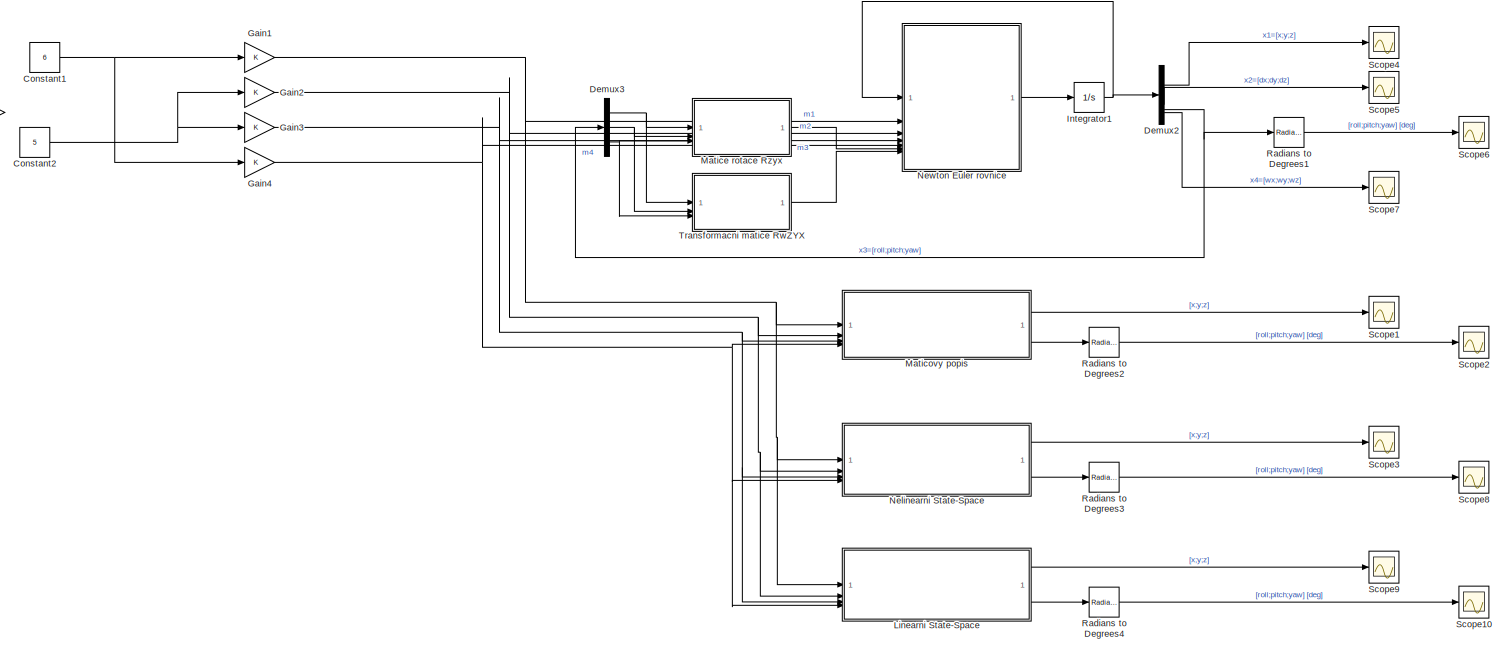
[diagram: root canvas - part 1/2, most of the canvas]
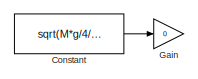
[diagram: root canvas - part 2/2, top left region]
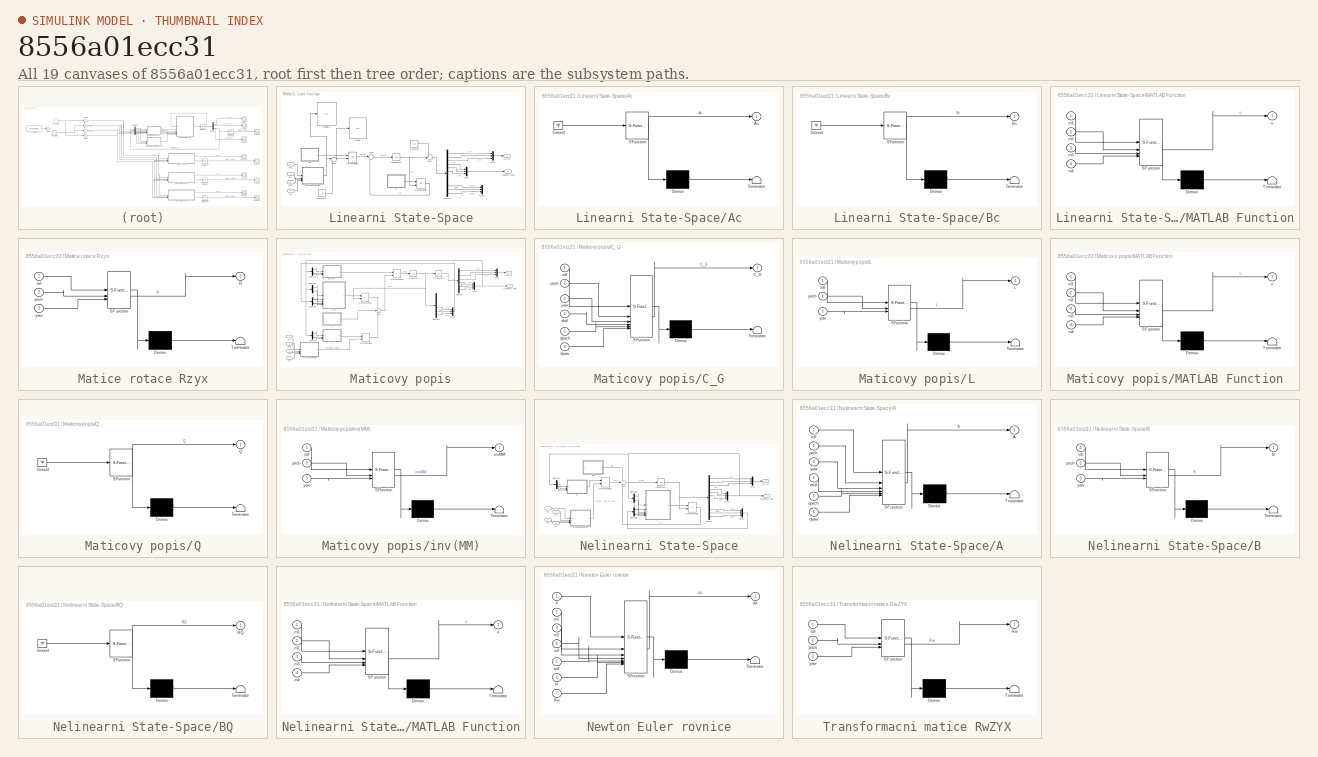
[diagram: thumbnail index - all 19 canvases of the model, root first then tree order]
MODEL slx_8556a01ecc31
KIND model
CONFIG AbsTol = auto
CONFIG EnableMultiTasking = off
CONFIG FixedStep = 0.01
CONFIG MaxStep = auto
CONFIG MinStep = auto
CONFIG RelTol = 1e-3
CONFIG SampleTimeConstraint = Unconstrained
CONFIG SolverName = FixedStepAuto
CONFIG StartTime = 0.0
CONFIG StopTime = 1
BLOCK [Constant] Constant
  Value = sqrt(M*g/4/k_thrust)
BLOCK [Constant] Constant1
  Value = 6
BLOCK [Constant] Constant2
  Value = 5
BLOCK [Demux] Demux2
BLOCK [Demux] Demux3
  Outputs = 3
BLOCK [Gain] Gain
  Gain = 0
BLOCK [Gain] Gain1
BLOCK [Gain] Gain2
BLOCK [Gain] Gain3
BLOCK [Gain] Gain4
BLOCK [Integrator] Integrator1
  InitialCondition = Xinit
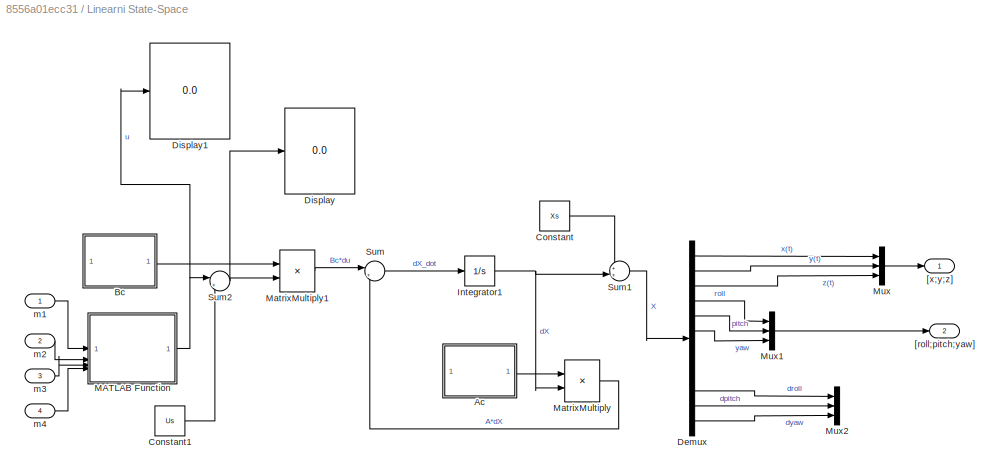
BLOCK [SubSystem] Linearni State-Space
BLOCK [SubSystem] Linearni State-Space/Ac
  ErrorFcn = Stateflow.Translate.translate
  PermitHierarchicalResolution = ExplicitOnly
  SFBlockType = MATLAB Function
  TreatAsAtomicUnit = on
BLOCK [Demux] Linearni State-Space/Ac/ Demux 
  Outputs = 1
BLOCK [Ground] Linearni State-Space/Ac/ Ground 
BLOCK [S-Function] Linearni State-Space/Ac/ SFunction 
  EnableBusSupport = on
  FunctionName = sf_sfun
  Parameters = M,g,k
  PortCounts = [1 2]
  SFcnIsStateOwnerBlock = off
  SFunctionDeploymentMode = off
  Tag = Stateflow S-Function 17
BLOCK [Terminator] Linearni State-Space/Ac/ Terminator 
BLOCK [Outport] Linearni State-Space/Ac/Ac
BLOCK [SubSystem] Linearni State-Space/Bc
  ErrorFcn = Stateflow.Translate.translate
  PermitHierarchicalResolution = ExplicitOnly
  SFBlockType = MATLAB Function
  TreatAsAtomicUnit = on
BLOCK [Demux] Linearni State-Space/Bc/ Demux 
  Outputs = 1
BLOCK [Ground] Linearni State-Space/Bc/ Ground 
BLOCK [S-Function] Linearni State-Space/Bc/ SFunction 
  EnableBusSupport = on
  FunctionName = sf_sfun
  Parameters = Ixx,Iyy,Izz,M
  PortCounts = [1 2]
  SFcnIsStateOwnerBlock = off
  SFunctionDeploymentMode = off
  Tag = Stateflow S-Function 12
BLOCK [Terminator] Linearni State-Space/Bc/ Terminator 
BLOCK [Outport] Linearni State-Space/Bc/Bc
BLOCK [Constant] Linearni State-Space/Constant
  Value = Xs
BLOCK [Constant] Linearni State-Space/Constant1
  Value = Us
BLOCK [Demux] Linearni State-Space/Demux
  Outputs = 12
BLOCK [Display] Linearni State-Space/Display
  Decimation = 1
BLOCK [Display] Linearni State-Space/Display1
  Decimation = 1
BLOCK [Integrator] Linearni State-Space/Integrator1
  InitialCondition = Xinit_ss
BLOCK [SubSystem] Linearni State-Space/MATLAB Function
  ErrorFcn = Stateflow.Translate.translate
  PermitHierarchicalResolution = ExplicitOnly
  SFBlockType = MATLAB Function
  TreatAsAtomicUnit = on
BLOCK [Demux] Linearni State-Space/MATLAB Function/ Demux 
  Outputs = 1
BLOCK [S-Function] Linearni State-Space/MATLAB Function/ SFunction 
  EnableBusSupport = on
  FunctionName = sf_sfun
  Parameters = L,b_moment,k_thrust
  PortCounts = [4 2]
  SFcnIsStateOwnerBlock = off
  SFunctionDeploymentMode = off
  Tag = Stateflow S-Function 16
BLOCK [Terminator] Linearni State-Space/MATLAB Function/ Terminator 
BLOCK [Inport] Linearni State-Space/MATLAB Function/m1
BLOCK [Inport] Linearni State-Space/MATLAB Function/m2
  Port = 2
BLOCK [Inport] Linearni State-Space/MATLAB Function/m3
  Port = 3
BLOCK [Inport] Linearni State-Space/MATLAB Function/m4
  Port = 4
BLOCK [Outport] Linearni State-Space/MATLAB Function/u
BLOCK [Product] Linearni State-Space/MatrixMultiply
  Multiplication = Matrix(*)
BLOCK [Product] Linearni State-Space/MatrixMultiply1
  Multiplication = Matrix(*)
BLOCK [Mux] Linearni State-Space/Mux
  DisplayOption = bar
  Inputs = 3
BLOCK [Mux] Linearni State-Space/Mux1
  DisplayOption = bar
  Inputs = 3
BLOCK [Mux] Linearni State-Space/Mux2
  DisplayOption = bar
  Inputs = 3
BLOCK [Sum] Linearni State-Space/Sum
  Inputs = |++
BLOCK [Sum] Linearni State-Space/Sum1
  Inputs = ++|
BLOCK [Sum] Linearni State-Space/Sum2
  Inputs = |+-
BLOCK [Outport] Linearni State-Space/[roll;pitch;yaw]
  Port = 2
BLOCK [Outport] Linearni State-Space/[x;y;z]
BLOCK [Inport] Linearni State-Space/m1
BLOCK [Inport] Linearni State-Space/m2
  Port = 2
BLOCK [Inport] Linearni State-Space/m3
  Port = 3
BLOCK [Inport] Linearni State-Space/m4
  Port = 4
BLOCK [SubSystem] Matice rotace Rzyx
  ErrorFcn = Stateflow.Translate.translate
  PermitHierarchicalResolution = ExplicitOnly
  SFBlockType = MATLAB Function
  TreatAsAtomicUnit = on
BLOCK [Demux] Matice rotace Rzyx/ Demux 
  Outputs = 1
BLOCK [S-Function] Matice rotace Rzyx/ SFunction 
  EnableBusSupport = on
  FunctionName = sf_sfun
  PortCounts = [3 2]
  SFcnIsStateOwnerBlock = off
  SFunctionDeploymentMode = off
  Tag = Stateflow S-Function 4
BLOCK [Terminator] Matice rotace Rzyx/ Terminator 
BLOCK [Outport] Matice rotace Rzyx/R
BLOCK [Inport] Matice rotace Rzyx/pitch
  Port = 2
BLOCK [Inport] Matice rotace Rzyx/roll
BLOCK [Inport] Matice rotace Rzyx/yaw
  Port = 3
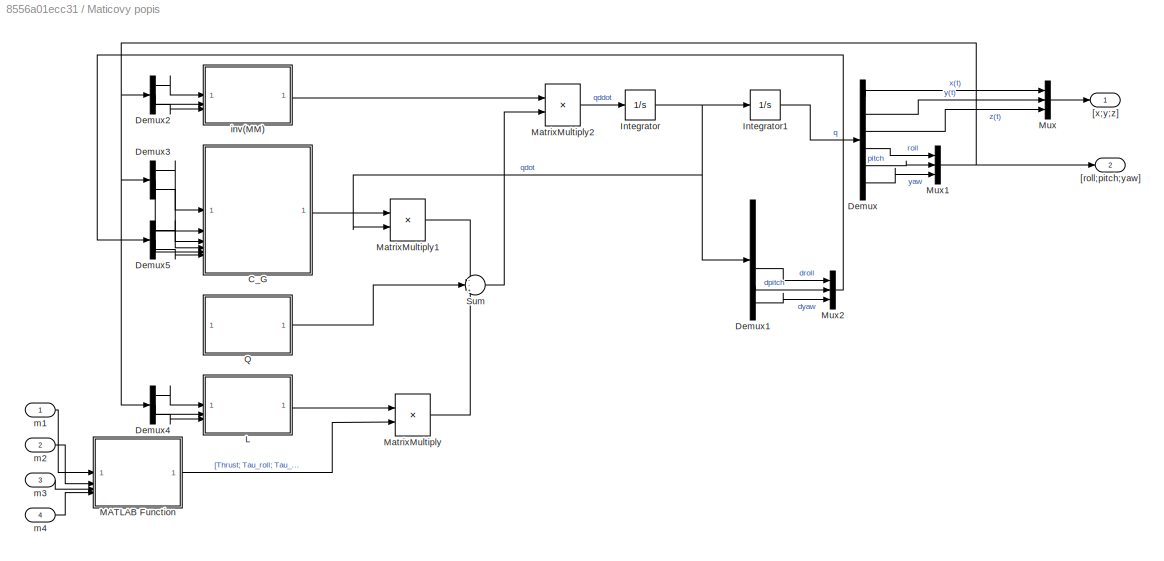
BLOCK [SubSystem] Maticovy popis
BLOCK [SubSystem] Maticovy popis/C_G
  ErrorFcn = Stateflow.Translate.translate
  PermitHierarchicalResolution = ExplicitOnly
  SFBlockType = MATLAB Function
  TreatAsAtomicUnit = on
BLOCK [Demux] Maticovy popis/C_G/ Demux 
  Outputs = 1
BLOCK [S-Function] Maticovy popis/C_G/ SFunction 
  EnableBusSupport = on
  FunctionName = sf_sfun
  Parameters = Ixx,Iyy,Izz,k
  PortCounts = [6 2]
  SFcnIsStateOwnerBlock = off
  SFunctionDeploymentMode = off
  Tag = Stateflow S-Function 1
BLOCK [Terminator] Maticovy popis/C_G/ Terminator 
BLOCK [Outport] Maticovy popis/C_G/C_G
BLOCK [Inport] Maticovy popis/C_G/dpitch
  Port = 5
BLOCK [Inport] Maticovy popis/C_G/droll
  Port = 4
BLOCK [Inport] Maticovy popis/C_G/dyaw
  Port = 6
BLOCK [Inport] Maticovy popis/C_G/pitch
  Port = 2
BLOCK [Inport] Maticovy popis/C_G/roll
BLOCK [Inport] Maticovy popis/C_G/yaw
  Port = 3
BLOCK [Demux] Maticovy popis/Demux
  Outputs = 6
BLOCK [Demux] Maticovy popis/Demux1
  Outputs = 6
BLOCK [Demux] Maticovy popis/Demux2
  Outputs = 3
BLOCK [Demux] Maticovy popis/Demux3
  Outputs = 3
BLOCK [Demux] Maticovy popis/Demux4
  Outputs = 3
BLOCK [Demux] Maticovy popis/Demux5
  Outputs = 3
BLOCK [Integrator] Maticovy popis/Integrator
  InitialCondition = [0;0;0;0;0;0]
BLOCK [Integrator] Maticovy popis/Integrator1
  InitialCondition = Xinit_matrix
BLOCK [SubSystem] Maticovy popis/L
  ErrorFcn = Stateflow.Translate.translate
  PermitHierarchicalResolution = ExplicitOnly
  SFBlockType = MATLAB Function
  TreatAsAtomicUnit = on
BLOCK [Demux] Maticovy popis/L/ Demux 
  Outputs = 1
BLOCK [S-Function] Maticovy popis/L/ SFunction 
  EnableBusSupport = on
  FunctionName = sf_sfun
  PortCounts = [3 2]
  SFcnIsStateOwnerBlock = off
  SFunctionDeploymentMode = off
  Tag = Stateflow S-Function 7
BLOCK [Terminator] Maticovy popis/L/ Terminator 
BLOCK [Outport] Maticovy popis/L/L
BLOCK [Inport] Maticovy popis/L/pitch
  Port = 2
BLOCK [Inport] Maticovy popis/L/roll
BLOCK [Inport] Maticovy popis/L/yaw
  Port = 3
BLOCK [SubSystem] Maticovy popis/MATLAB Function
  ErrorFcn = Stateflow.Translate.translate
  PermitHierarchicalResolution = ExplicitOnly
  SFBlockType = MATLAB Function
  TreatAsAtomicUnit = on
BLOCK [Demux] Maticovy popis/MATLAB Function/ Demux 
  Outputs = 1
BLOCK [S-Function] Maticovy popis/MATLAB Function/ SFunction 
  EnableBusSupport = on
  FunctionName = sf_sfun
  Parameters = L,b_moment,k_thrust
  PortCounts = [4 2]
  SFcnIsStateOwnerBlock = off
  SFunctionDeploymentMode = off
  Tag = Stateflow S-Function 8
BLOCK [Terminator] Maticovy popis/MATLAB Function/ Terminator 
BLOCK [Inport] Maticovy popis/MATLAB Function/m1
BLOCK [Inport] Maticovy popis/MATLAB Function/m2
  Port = 2
BLOCK [Inport] Maticovy popis/MATLAB Function/m3
  Port = 3
BLOCK [Inport] Maticovy popis/MATLAB Function/m4
  Port = 4
BLOCK [Outport] Maticovy popis/MATLAB Function/u
BLOCK [Product] Maticovy popis/MatrixMultiply
  Multiplication = Matrix(*)
BLOCK [Product] Maticovy popis/MatrixMultiply1
  Multiplication = Matrix(*)
BLOCK [Product] Maticovy popis/MatrixMultiply2
  Multiplication = Matrix(*)
BLOCK [Mux] Maticovy popis/Mux
  DisplayOption = bar
  Inputs = 3
BLOCK [Mux] Maticovy popis/Mux1
  DisplayOption = bar
  Inputs = 3
BLOCK [Mux] Maticovy popis/Mux2
  DisplayOption = bar
  Inputs = 3
BLOCK [SubSystem] Maticovy popis/Q
  ErrorFcn = Stateflow.Translate.translate
  PermitHierarchicalResolution = ExplicitOnly
  SFBlockType = MATLAB Function
  TreatAsAtomicUnit = on
BLOCK [Demux] Maticovy popis/Q/ Demux 
  Outputs = 1
BLOCK [Ground] Maticovy popis/Q/ Ground 
BLOCK [S-Function] Maticovy popis/Q/ SFunction 
  EnableBusSupport = on
  FunctionName = sf_sfun
  Parameters = M,g
  PortCounts = [1 2]
  SFcnIsStateOwnerBlock = off
  SFunctionDeploymentMode = off
  Tag = Stateflow S-Function 3
BLOCK [Terminator] Maticovy popis/Q/ Terminator 
BLOCK [Outport] Maticovy popis/Q/Q
BLOCK [Sum] Maticovy popis/Sum
  Inputs = --+
BLOCK [Outport] Maticovy popis/[roll;pitch;yaw]
  Port = 2
BLOCK [Outport] Maticovy popis/[x;y;z]
BLOCK [SubSystem] Maticovy popis/inv(MM)
  ErrorFcn = Stateflow.Translate.translate
  PermitHierarchicalResolution = ExplicitOnly
  SFBlockType = MATLAB Function
  TreatAsAtomicUnit = on
BLOCK [Demux] Maticovy popis/inv(MM)/ Demux 
  Outputs = 1
BLOCK [S-Function] Maticovy popis/inv(MM)/ SFunction 
  EnableBusSupport = on
  FunctionName = sf_sfun
  Parameters = Ixx,Iyy,Izz,M
  PortCounts = [3 2]
  SFcnIsStateOwnerBlock = off
  SFunctionDeploymentMode = off
  Tag = Stateflow S-Function 2
BLOCK [Terminator] Maticovy popis/inv(MM)/ Terminator 
BLOCK [Outport] Maticovy popis/inv(MM)/invMM
BLOCK [Inport] Maticovy popis/inv(MM)/pitch
  Port = 2
BLOCK [Inport] Maticovy popis/inv(MM)/roll
BLOCK [Inport] Maticovy popis/inv(MM)/yaw
  Port = 3
BLOCK [Inport] Maticovy popis/m1
BLOCK [Inport] Maticovy popis/m2
  Port = 2
BLOCK [Inport] Maticovy popis/m3
  Port = 3
BLOCK [Inport] Maticovy popis/m4
  Port = 4
BLOCK [SubSystem] Nelinearni State-Space
BLOCK [SubSystem] Nelinearni State-Space/A
  ErrorFcn = Stateflow.Translate.translate
  PermitHierarchicalResolution = ExplicitOnly
  SFBlockType = MATLAB Function
  TreatAsAtomicUnit = on
BLOCK [Demux] Nelinearni State-Space/A/ Demux 
  Outputs = 1
BLOCK [S-Function] Nelinearni State-Space/A/ SFunction 
  EnableBusSupport = on
  FunctionName = sf_sfun
  Parameters = Ixx,Iyy,Izz,M,k
  PortCounts = [6 2]
  SFcnIsStateOwnerBlock = off
  SFunctionDeploymentMode = off
  Tag = Stateflow S-Function 9
BLOCK [Terminator] Nelinearni State-Space/A/ Terminator 
BLOCK [Outport] Nelinearni State-Space/A/A
BLOCK [Inport] Nelinearni State-Space/A/dpitch
  Port = 5
BLOCK [Inport] Nelinearni State-Space/A/droll
  Port = 4
BLOCK [Inport] Nelinearni State-Space/A/dyaw
  Port = 6
BLOCK [Inport] Nelinearni State-Space/A/pitch
  Port = 2
BLOCK [Inport] Nelinearni State-Space/A/roll
BLOCK [Inport] Nelinearni State-Space/A/yaw
  Port = 3
BLOCK [SubSystem] Nelinearni State-Space/B
  ErrorFcn = Stateflow.Translate.translate
  PermitHierarchicalResolution = ExplicitOnly
  SFBlockType = MATLAB Function
  TreatAsAtomicUnit = on
BLOCK [Demux] Nelinearni State-Space/B/ Demux 
  Outputs = 1
BLOCK [S-Function] Nelinearni State-Space/B/ SFunction 
  EnableBusSupport = on
  FunctionName = sf_sfun
  Parameters = Ixx,Iyy,Izz,M
  PortCounts = [3 2]
  SFcnIsStateOwnerBlock = off
  SFunctionDeploymentMode = off
  Tag = Stateflow S-Function 13
BLOCK [Terminator] Nelinearni State-Space/B/ Terminator 
BLOCK [Outport] Nelinearni State-Space/B/B
BLOCK [Inport] Nelinearni State-Space/B/pitch
  Port = 2
BLOCK [Inport] Nelinearni State-Space/B/roll
BLOCK [Inport] Nelinearni State-Space/B/yaw
  Port = 3
BLOCK [SubSystem] Nelinearni State-Space/BQ
  ErrorFcn = Stateflow.Translate.translate
  PermitHierarchicalResolution = ExplicitOnly
  SFBlockType = MATLAB Function
  TreatAsAtomicUnit = on
BLOCK [Demux] Nelinearni State-Space/BQ/ Demux 
  Outputs = 1
BLOCK [Ground] Nelinearni State-Space/BQ/ Ground 
BLOCK [S-Function] Nelinearni State-Space/BQ/ SFunction 
  EnableBusSupport = on
  FunctionName = sf_sfun
  Parameters = g
  PortCounts = [1 2]
  SFcnIsStateOwnerBlock = off
  SFunctionDeploymentMode = off
  Tag = Stateflow S-Function 10
BLOCK [Terminator] Nelinearni State-Space/BQ/ Terminator 
BLOCK [Outport] Nelinearni State-Space/BQ/BQ
BLOCK [Demux] Nelinearni State-Space/Demux
  Outputs = 12
BLOCK [Demux] Nelinearni State-Space/Demux2
  Outputs = 3
BLOCK [Demux] Nelinearni State-Space/Demux3
  Outputs = 3
BLOCK [Demux] Nelinearni State-Space/Demux5
  Outputs = 3
BLOCK [Integrator] Nelinearni State-Space/Integrator1
  InitialCondition = Xinit_ss
BLOCK [SubSystem] Nelinearni State-Space/MATLAB Function
  ErrorFcn = Stateflow.Translate.translate
  PermitHierarchicalResolution = ExplicitOnly
  SFBlockType = MATLAB Function
  TreatAsAtomicUnit = on
BLOCK [Demux] Nelinearni State-Space/MATLAB Function/ Demux 
  Outputs = 1
BLOCK [S-Function] Nelinearni State-Space/MATLAB Function/ SFunction 
  EnableBusSupport = on
  FunctionName = sf_sfun
  Parameters = L,b_moment,k_thrust
  PortCounts = [4 2]
  SFcnIsStateOwnerBlock = off
  SFunctionDeploymentMode = off
  Tag = Stateflow S-Function 11
BLOCK [Terminator] Nelinearni State-Space/MATLAB Function/ Terminator 
BLOCK [Inport] Nelinearni State-Space/MATLAB Function/m1
BLOCK [Inport] Nelinearni State-Space/MATLAB Function/m2
  Port = 2
BLOCK [Inport] Nelinearni State-Space/MATLAB Function/m3
  Port = 3
BLOCK [Inport] Nelinearni State-Space/MATLAB Function/m4
  Port = 4
BLOCK [Outport] Nelinearni State-Space/MATLAB Function/u
BLOCK [Product] Nelinearni State-Space/MatrixMultiply
  Multiplication = Matrix(*)
BLOCK [Product] Nelinearni State-Space/MatrixMultiply1
  Multiplication = Matrix(*)
BLOCK [Mux] Nelinearni State-Space/Mux
  DisplayOption = bar
  Inputs = 3
BLOCK [Mux] Nelinearni State-Space/Mux1
  DisplayOption = bar
  Inputs = 3
BLOCK [Mux] Nelinearni State-Space/Mux2
  DisplayOption = bar
  Inputs = 3
BLOCK [Sum] Nelinearni State-Space/Sum
  Inputs = +++
BLOCK [Outport] Nelinearni State-Space/[roll;pitch;yaw]
  Port = 2
BLOCK [Outport] Nelinearni State-Space/[x;y;z]
BLOCK [Inport] Nelinearni State-Space/m1
BLOCK [Inport] Nelinearni State-Space/m2
  Port = 2
BLOCK [Inport] Nelinearni State-Space/m3
  Port = 3
BLOCK [Inport] Nelinearni State-Space/m4
  Port = 4
BLOCK [SubSystem] Newton Euler rovnice
  ErrorFcn = Stateflow.Translate.translate
  PermitHierarchicalResolution = ExplicitOnly
  SFBlockType = MATLAB Function
  TreatAsAtomicUnit = on
BLOCK [Demux] Newton Euler rovnice/ Demux 
  Outputs = 1
BLOCK [S-Function] Newton Euler rovnice/ SFunction 
  EnableBusSupport = on
  FunctionName = sf_sfun
  Parameters = I,L,M,b_moment,g,k,k_thrust
  PortCounts = [7 2]
  SFcnIsStateOwnerBlock = off
  SFunctionDeploymentMode = off
  Tag = Stateflow S-Function 5
BLOCK [Terminator] Newton Euler rovnice/ Terminator 
BLOCK [Inport] Newton Euler rovnice/R
  Port = 6
BLOCK [Inport] Newton Euler rovnice/Rw
  Port = 7
BLOCK [Inport] Newton Euler rovnice/X
BLOCK [Outport] Newton Euler rovnice/dX
BLOCK [Inport] Newton Euler rovnice/m1
  Port = 2
BLOCK [Inport] Newton Euler rovnice/m2
  Port = 3
BLOCK [Inport] Newton Euler rovnice/m3
  Port = 4
BLOCK [Inport] Newton Euler rovnice/m4
  Port = 5
BLOCK [Reference] Radians to Degrees1  REF=simulink_extras/Transformations/Radians
to Degrees
  SourceBlock = simulink_extras/Transformations/Radians\nto Degrees
  SourceType = RadiansToDegrees
BLOCK [Reference] Radians to Degrees2  REF=simulink_extras/Transformations/Radians
to Degrees
  SourceBlock = simulink_extras/Transformations/Radians\nto Degrees
  SourceType = RadiansToDegrees
BLOCK [Reference] Radians to Degrees3  REF=simulink_extras/Transformations/Radians
to Degrees
  SourceBlock = simulink_extras/Transformations/Radians\nto Degrees
  SourceType = RadiansToDegrees
BLOCK [Reference] Radians to Degrees4  REF=simulink_extras/Transformations/Radians
to Degrees
  SourceBlock = simulink_extras/Transformations/Radians\nto Degrees
  SourceType = RadiansToDegrees
BLOCK [Scope] Scope1
  Floating = off
  NumInputPorts = 1
  ScopeSpecificationString = Simulink.scopes.TimeScopeBlockCfg('CurrentConfiguration', extmgr.ConfigurationSet(extmgr.Configuration('Core','General UI',true),extmgr.Configuration('Core','Source UI',true),extmgr.Configuration('Sources','WiredSimulink',true,'DataLoggingVariableName','ScopeData1'),extmgr.Configuration('Visuals','Time Domain',true,'SerializedDisplays',{struct('MinYLimReal','-92.57265','MaxYLimReal','10.28585','YL...<+1543ch>
BLOCK [Scope] Scope10
  Floating = off
  NumInputPorts = 1
  ScopeSpecificationString = Simulink.scopes.TimeScopeBlockCfg('CurrentConfiguration', extmgr.ConfigurationSet(extmgr.Configuration('Core','General UI',true),extmgr.Configuration('Core','Source UI',true),extmgr.Configuration('Sources','WiredSimulink',true,'DataLoggingVariableName','ScopeData1'),extmgr.Configuration('Visuals','Time Domain',true,'SerializedDisplays',{struct('MinYLimReal','-15.39824','MaxYLimReal','138.58417','Y...<+1590ch>
BLOCK [Scope] Scope2
  Floating = off
  NumInputPorts = 1
  ScopeSpecificationString = Simulink.scopes.TimeScopeBlockCfg('CurrentConfiguration', extmgr.ConfigurationSet(extmgr.Configuration('Core','General UI',true),extmgr.Configuration('Core','Source UI',true),extmgr.Configuration('Sources','WiredSimulink',true,'DataLoggingVariableName','ScopeData2'),extmgr.Configuration('Visuals','Time Domain',true,'SerializedDisplays',{struct('MinYLimReal','-15.39824','MaxYLimReal','138.58417','Y...<+1590ch>
BLOCK [Scope] Scope3
  Floating = off
  NumInputPorts = 1
  ScopeSpecificationString = Simulink.scopes.TimeScopeBlockCfg('CurrentConfiguration', extmgr.ConfigurationSet(extmgr.Configuration('Core','General UI',true),extmgr.Configuration('Core','Source UI',true),extmgr.Configuration('Sources','WiredSimulink',true,'DataLoggingVariableName','ScopeData1'),extmgr.Configuration('Visuals','Time Domain',true,'SerializedDisplays',{struct('MinYLimReal','-92.57265','MaxYLimReal','10.28585','YL...<+1541ch>
BLOCK [Scope] Scope4
  Floating = off
  NumInputPorts = 1
  ScopeSpecificationString = Simulink.scopes.TimeScopeBlockCfg('CurrentConfiguration', extmgr.ConfigurationSet(extmgr.Configuration('Core','General UI',true),extmgr.Configuration('Core','Source UI',true),extmgr.Configuration('Sources','WiredSimulink',true,'DataLoggingVariableName','ScopeData5'),extmgr.Configuration('Visuals','Time Domain',true,'SerializedDisplays',{struct('MinYLimReal','-92.57265','MaxYLimReal','10.28585','YL...<+1550ch>
BLOCK [Scope] Scope5
  Floating = off
  NumInputPorts = 1
  ScopeSpecificationString = Simulink.scopes.TimeScopeBlockCfg('CurrentConfiguration', extmgr.ConfigurationSet(extmgr.Configuration('Core','General UI',true),extmgr.Configuration('Core','Source UI',true),extmgr.Configuration('Sources','WiredSimulink',true,'DataLoggingVariableName','ScopeData6'),extmgr.Configuration('Visuals','Time Domain',true,'SerializedDisplays',{struct('MinYLimReal','-0.000000000000039','MaxYLimReal','0.00...<+1602ch>
BLOCK [Scope] Scope6
  Floating = off
  NumInputPorts = 1
  ScopeSpecificationString = Simulink.scopes.TimeScopeBlockCfg('CurrentConfiguration', extmgr.ConfigurationSet(extmgr.Configuration('Core','General UI',true),extmgr.Configuration('Core','Source UI',true),extmgr.Configuration('Sources','WiredSimulink',true,'DataLoggingVariableName','ScopeData7'),extmgr.Configuration('Visuals','Time Domain',true,'SerializedDisplays',{struct('MinYLimReal','-15.39824','MaxYLimReal','138.58417','Y...<+1592ch>
BLOCK [Scope] Scope7
  Floating = off
  NumInputPorts = 1
  ScopeSpecificationString = Simulink.scopes.TimeScopeBlockCfg('CurrentConfiguration', extmgr.ConfigurationSet(extmgr.Configuration('Core','General UI',true),extmgr.Configuration('Core','Source UI',true),extmgr.Configuration('Sources','WiredSimulink',true),extmgr.Configuration('Visuals','Time Domain',true,'SerializedDisplays',{struct('MinYLimReal','-15.8371','MaxYLimReal','1.75968','YLabelReal','','MinYLimMag','0.00000','MaxY...<+1487ch>
BLOCK [Scope] Scope8
  Floating = off
  NumInputPorts = 1
  ScopeSpecificationString = Simulink.scopes.TimeScopeBlockCfg('CurrentConfiguration', extmgr.ConfigurationSet(extmgr.Configuration('Core','General UI',true),extmgr.Configuration('Core','Source UI',true),extmgr.Configuration('Sources','WiredSimulink',true,'DataLoggingVariableName','ScopeData2'),extmgr.Configuration('Visuals','Time Domain',true,'SerializedDisplays',{struct('MinYLimReal','-15.39824','MaxYLimReal','138.58417','Y...<+1590ch>
BLOCK [Scope] Scope9
  Floating = off
  NumInputPorts = 1
  ScopeSpecificationString = Simulink.scopes.TimeScopeBlockCfg('CurrentConfiguration', extmgr.ConfigurationSet(extmgr.Configuration('Core','General UI',true),extmgr.Configuration('Core','Source UI',true),extmgr.Configuration('Sources','WiredSimulink',true,'DataLoggingVariableName','ScopeData2'),extmgr.Configuration('Visuals','Time Domain',true,'SerializedDisplays',{struct('MinYLimReal','-85.53196','MaxYLimReal','9.50355','YLa...<+1541ch>
BLOCK [SubSystem] Transformacni matice RwZYX
  ErrorFcn = Stateflow.Translate.translate
  PermitHierarchicalResolution = ExplicitOnly
  SFBlockType = MATLAB Function
  TreatAsAtomicUnit = on
BLOCK [Demux] Transformacni matice RwZYX/ Demux 
  Outputs = 1
BLOCK [S-Function] Transformacni matice RwZYX/ SFunction 
  EnableBusSupport = on
  FunctionName = sf_sfun
  PortCounts = [3 2]
  SFcnIsStateOwnerBlock = off
  SFunctionDeploymentMode = off
  Tag = Stateflow S-Function 6
BLOCK [Terminator] Transformacni matice RwZYX/ Terminator 
BLOCK [Outport] Transformacni matice RwZYX/Rw
BLOCK [Inport] Transformacni matice RwZYX/pitch
  Port = 2
BLOCK [Inport] Transformacni matice RwZYX/roll
BLOCK [Inport] Transformacni matice RwZYX/yaw
  Port = 3
NET Constant1:1 -> Gain1:1, Gain4:1
NET Constant2:1 -> Gain2:1, Gain3:1
LINE Constant:1 -> Gain:1
LINE Demux2:1 -> Scope4:1
LINE Demux2:2 -> Scope5:1
NET Demux2:3 -> Demux3:1, Radians to Degrees1:1
LINE Demux2:4 -> Scope7:1
NET Demux3:1 -> Matice rotace Rzyx:1, Transformacni matice RwZYX:1
NET Demux3:2 -> Matice rotace Rzyx:2, Transformacni matice RwZYX:2
NET Demux3:3 -> Matice rotace Rzyx:3, Transformacni matice RwZYX:3
NET Gain1:1 -> Linearni State-Space:1, Maticovy popis:1, Nelinearni State-Space:1, Newton Euler rovnice:2
NET Gain2:1 -> Linearni State-Space:2, Maticovy popis:2, Nelinearni State-Space:2, Newton Euler rovnice:3
NET Gain3:1 -> Linearni State-Space:3, Maticovy popis:3, Nelinearni State-Space:3, Newton Euler rovnice:4
NET Gain4:1 -> Linearni State-Space:4, Maticovy popis:4, Nelinearni State-Space:4, Newton Euler rovnice:5
NET Integrator1:1 -> Demux2:1, Newton Euler rovnice:1
LINE Linearni State-Space/Ac:1 -> Linearni State-Space/MatrixMultiply:1
LINE Linearni State-Space/Bc:1 -> Linearni State-Space/MatrixMultiply1:1
LINE Linearni State-Space/Constant1:1 -> Linearni State-Space/Sum2:2
LINE Linearni State-Space/Constant:1 -> Linearni State-Space/Sum1:1
LINE Linearni State-Space/Demux:1 -> Linearni State-Space/Mux:1
LINE Linearni State-Space/Demux:10 -> Linearni State-Space/Mux2:1
LINE Linearni State-Space/Demux:11 -> Linearni State-Space/Mux2:2
LINE Linearni State-Space/Demux:12 -> Linearni State-Space/Mux2:3
LINE Linearni State-Space/Demux:2 -> Linearni State-Space/Mux:2
LINE Linearni State-Space/Demux:3 -> Linearni State-Space/Mux:3
LINE Linearni State-Space/Demux:4 -> Linearni State-Space/Mux1:1
LINE Linearni State-Space/Demux:5 -> Linearni State-Space/Mux1:2
LINE Linearni State-Space/Demux:6 -> Linearni State-Space/Mux1:3
NET Linearni State-Space/Integrator1:1 -> Linearni State-Space/MatrixMultiply:2, Linearni State-Space/Sum1:2
NET Linearni State-Space/MATLAB Function:1 -> Linearni State-Space/Display1:1, Linearni State-Space/Sum2:1
LINE Linearni State-Space/MatrixMultiply1:1 -> Linearni State-Space/Sum:1
LINE Linearni State-Space/MatrixMultiply:1 -> Linearni State-Space/Sum:2
LINE Linearni State-Space/Mux1:1 -> Linearni State-Space/[roll;pitch;yaw]:1
LINE Linearni State-Space/Mux:1 -> Linearni State-Space/[x;y;z]:1
LINE Linearni State-Space/Sum1:1 -> Linearni State-Space/Demux:1
NET Linearni State-Space/Sum2:1 -> Linearni State-Space/Display:1, Linearni State-Space/MatrixMultiply1:2
LINE Linearni State-Space/Sum:1 -> Linearni State-Space/Integrator1:1
LINE Linearni State-Space/m1:1 -> Linearni State-Space/MATLAB Function:1
LINE Linearni State-Space/m2:1 -> Linearni State-Space/MATLAB Function:2
LINE Linearni State-Space/m3:1 -> Linearni State-Space/MATLAB Function:3
LINE Linearni State-Space/m4:1 -> Linearni State-Space/MATLAB Function:4
LINE Linearni State-Space:1 -> Scope9:1
LINE Linearni State-Space:2 -> Radians to Degrees4:1
LINE Matice rotace Rzyx:1 -> Newton Euler rovnice:6
LINE Maticovy popis/C_G:1 -> Maticovy popis/MatrixMultiply1:1
LINE Maticovy popis/Demux1:4 -> Maticovy popis/Mux2:1
LINE Maticovy popis/Demux1:5 -> Maticovy popis/Mux2:2
LINE Maticovy popis/Demux1:6 -> Maticovy popis/Mux2:3
LINE Maticovy popis/Demux2:1 -> Maticovy popis/inv(MM):1
LINE Maticovy popis/Demux2:2 -> Maticovy popis/inv(MM):2
LINE Maticovy popis/Demux2:3 -> Maticovy popis/inv(MM):3
LINE Maticovy popis/Demux3:1 -> Maticovy popis/C_G:1
LINE Maticovy popis/Demux3:2 -> Maticovy popis/C_G:2
LINE Maticovy popis/Demux3:3 -> Maticovy popis/C_G:3
LINE Maticovy popis/Demux4:1 -> Maticovy popis/L:1
LINE Maticovy popis/Demux4:2 -> Maticovy popis/L:2
LINE Maticovy popis/Demux4:3 -> Maticovy popis/L:3
LINE Maticovy popis/Demux5:1 -> Maticovy popis/C_G:4
LINE Maticovy popis/Demux5:2 -> Maticovy popis/C_G:5
LINE Maticovy popis/Demux5:3 -> Maticovy popis/C_G:6
LINE Maticovy popis/Demux:1 -> Maticovy popis/Mux:1
LINE Maticovy popis/Demux:2 -> Maticovy popis/Mux:2
LINE Maticovy popis/Demux:3 -> Maticovy popis/Mux:3
LINE Maticovy popis/Demux:4 -> Maticovy popis/Mux1:1
LINE Maticovy popis/Demux:5 -> Maticovy popis/Mux1:2
LINE Maticovy popis/Demux:6 -> Maticovy popis/Mux1:3
LINE Maticovy popis/Integrator1:1 -> Maticovy popis/Demux:1
NET Maticovy popis/Integrator:1 -> Maticovy popis/Demux1:1, Maticovy popis/Integrator1:1, Maticovy popis/MatrixMultiply1:2
LINE Maticovy popis/L:1 -> Maticovy popis/MatrixMultiply:1
LINE Maticovy popis/MATLAB Function:1 -> Maticovy popis/MatrixMultiply:2
LINE Maticovy popis/MatrixMultiply1:1 -> Maticovy popis/Sum:1
LINE Maticovy popis/MatrixMultiply2:1 -> Maticovy popis/Integrator:1
LINE Maticovy popis/MatrixMultiply:1 -> Maticovy popis/Sum:3
NET Maticovy popis/Mux1:1 -> Maticovy popis/Demux2:1, Maticovy popis/Demux3:1, Maticovy popis/Demux4:1, Maticovy popis/[roll;pitch;yaw]:1
LINE Maticovy popis/Mux2:1 -> Maticovy popis/Demux5:1
LINE Maticovy popis/Mux:1 -> Maticovy popis/[x;y;z]:1
LINE Maticovy popis/Q:1 -> Maticovy popis/Sum:2
LINE Maticovy popis/Sum:1 -> Maticovy popis/MatrixMultiply2:2
LINE Maticovy popis/inv(MM):1 -> Maticovy popis/MatrixMultiply2:1
LINE Maticovy popis/m1:1 -> Maticovy popis/MATLAB Function:1
LINE Maticovy popis/m2:1 -> Maticovy popis/MATLAB Function:2
LINE Maticovy popis/m3:1 -> Maticovy popis/MATLAB Function:3
LINE Maticovy popis/m4:1 -> Maticovy popis/MATLAB Function:4
LINE Maticovy popis:1 -> Scope1:1
LINE Maticovy popis:2 -> Radians to Degrees2:1
LINE Nelinearni State-Space/A:1 -> Nelinearni State-Space/MatrixMultiply:1
LINE Nelinearni State-Space/B:1 -> Nelinearni State-Space/MatrixMultiply1:1
LINE Nelinearni State-Space/BQ:1 -> Nelinearni State-Space/Sum:1
LINE Nelinearni State-Space/Demux2:1 -> Nelinearni State-Space/B:1
LINE Nelinearni State-Space/Demux2:2 -> Nelinearni State-Space/B:2
LINE Nelinearni State-Space/Demux2:3 -> Nelinearni State-Space/B:3
LINE Nelinearni State-Space/Demux3:1 -> Nelinearni State-Space/A:1
LINE Nelinearni State-Space/Demux3:2 -> Nelinearni State-Space/A:2
LINE Nelinearni State-Space/Demux3:3 -> Nelinearni State-Space/A:3
LINE Nelinearni State-Space/Demux5:1 -> Nelinearni State-Space/A:4
LINE Nelinearni State-Space/Demux5:2 -> Nelinearni State-Space/A:5
LINE Nelinearni State-Space/Demux5:3 -> Nelinearni State-Space/A:6
LINE Nelinearni State-Space/Demux:1 -> Nelinearni State-Space/Mux:1
LINE Nelinearni State-Space/Demux:10 -> Nelinearni State-Space/Mux2:1
LINE Nelinearni State-Space/Demux:11 -> Nelinearni State-Space/Mux2:2
LINE Nelinearni State-Space/Demux:12 -> Nelinearni State-Space/Mux2:3
LINE Nelinearni State-Space/Demux:2 -> Nelinearni State-Space/Mux:2
LINE Nelinearni State-Space/Demux:3 -> Nelinearni State-Space/Mux:3
LINE Nelinearni State-Space/Demux:4 -> Nelinearni State-Space/Mux1:1
LINE Nelinearni State-Space/Demux:5 -> Nelinearni State-Space/Mux1:2
LINE Nelinearni State-Space/Demux:6 -> Nelinearni State-Space/Mux1:3
NET Nelinearni State-Space/Integrator1:1 -> Nelinearni State-Space/Demux:1, Nelinearni State-Space/MatrixMultiply:2
LINE Nelinearni State-Space/MATLAB Function:1 -> Nelinearni State-Space/MatrixMultiply1:2
LINE Nelinearni State-Space/MatrixMultiply1:1 -> Nelinearni State-Space/Sum:2
LINE Nelinearni State-Space/MatrixMultiply:1 -> Nelinearni State-Space/Sum:3
NET Nelinearni State-Space/Mux1:1 -> Nelinearni State-Space/Demux2:1, Nelinearni State-Space/Demux3:1, Nelinearni State-Space/[roll;pitch;yaw]:1
LINE Nelinearni State-Space/Mux2:1 -> Nelinearni State-Space/Demux5:1
LINE Nelinearni State-Space/Mux:1 -> Nelinearni State-Space/[x;y;z]:1
LINE Nelinearni State-Space/Sum:1 -> Nelinearni State-Space/Integrator1:1
LINE Nelinearni State-Space/m1:1 -> Nelinearni State-Space/MATLAB Function:1
LINE Nelinearni State-Space/m2:1 -> Nelinearni State-Space/MATLAB Function:2
LINE Nelinearni State-Space/m3:1 -> Nelinearni State-Space/MATLAB Function:3
LINE Nelinearni State-Space/m4:1 -> Nelinearni State-Space/MATLAB Function:4
LINE Nelinearni State-Space:1 -> Scope3:1
LINE Nelinearni State-Space:2 -> Radians to Degrees3:1
LINE Newton Euler rovnice:1 -> Integrator1:1
LINE Radians to Degrees1:1 -> Scope6:1
LINE Radians to Degrees2:1 -> Scope2:1
LINE Radians to Degrees3:1 -> Scope8:1
LINE Radians to Degrees4:1 -> Scope10:1
LINE Transformacni matice RwZYX:1 -> Newton Euler rovnice:7
note: NET lines group one-source signal fan-out (src -> all destinations, sorted); 1:1 wires keep LINE
CHART Maticovy popis/MATLAB Function states=1 transitions=1
  STATE_LABEL 'eML_blk_kernel()'
  STATE_LABEL 'SCRIPT:\nfunction u = fcn(m1, m2, m3, m4, k_thrust, b_moment, L)\n\nThrust = k_thrust*(m1^2 + m2^2 + m3^2 + m4^2);\nTau_roll = L*k_thrust*(m1^2 + m4^2 - m2^2 - m3^2);\nTau_pitch = L*k_thrust*(m4^2 + m3^2 - m1^2 - m2^2);\nTau_yaw = b_moment*(m1^2 + m3^2 - m2^2 - m4^2);\n\nu = [Thrust; Tau_roll; Tau_pitch; Tau_yaw];\n'  <repeated x3 — deduplicated; at blocks: MATLAB Function>
CHART Nelinearni State-Space/A states=1 transitions=1
  STATE_LABEL 'eML_blk_kernel()'
  STATE_LABEL 'SCRIPT:\nfunction A = fcn(roll, pitch, yaw, droll, dpitch, dyaw, k, Ixx, Iyy, Izz, M)\n% Matice dynamiky A\n\nphi_t = roll;\ntheta_t = pitch;\npsi_t = yaw;\n\nphi_dot_t = droll;\ntheta_dot_t = dpitch;\npsi_dot_t = dyaw;\n\nA = [\n0, 0, 0, 0, 0, 0,    1,    0,    0,                                                                                                                                                    ...<+3608ch>'
CHART Nelinearni State-Space/BQ states=1 transitions=1
  STATE_LABEL 'eML_blk_kernel()'
  STATE_LABEL "SCRIPT:\nfunction BQ = fcn(g)\n% Matice vstupu tihy\nBQ = [0 0 0 0 0 0 0 0 -g 0 0 0]';\n"
CHART Nelinearni State-Space/MATLAB Function states=1 transitions=1
  STATE_LABEL 'eML_blk_kernel()'
CHART Linearni State-Space/Bc states=1 transitions=1
  STATE_LABEL 'eML_blk_kernel()'
  STATE_LABEL 'SCRIPT:\nfunction Bc = fcn(M, Ixx, Iyy, Izz)\n% Matice Ac linearizovana\n\nBc = [\n  0,     0,     0,     0;\n  0,     0,     0,     0;\n  0,     0,     0,     0;\n  0,     0,     0,     0;\n  0,     0,     0,     0;\n  0,     0,     0,     0;\n  0,     0,     0,     0;\n  0,     0,     0,     0;\n1/M,     0,     0,     0;\n  0, 1/Ixx,     0,     0;\n  0,     0, 1/Iyy,     0;\n  0,     0,     0, 1/Izz];\n'
CHART Nelinearni State-Space/B states=1 transitions=1
  STATE_LABEL 'eML_blk_kernel()'
  STATE_LABEL 'SCRIPT:\nfunction B = fcn(roll, pitch, yaw, M, Ixx, Iyy, Izz)\n% Matice vstupu do soustavy kvadrokoptery\n\nphi_t = roll;\ntheta_t = pitch;\npsi_t = yaw;\n\nB = [\n                                                              0,     0,                                                                          0,                                                                          0;\n                     ...<+2447ch>'
CHART Linearni State-Space/MATLAB Function states=1 transitions=1
  STATE_LABEL 'eML_blk_kernel()'
CHART Linearni State-Space/Ac states=1 transitions=1
  STATE_LABEL 'eML_blk_kernel()'
  STATE_LABEL 'SCRIPT:\nfunction Ac = fcn(k, g, M)\n% Matice Ac linearizovana\n\nAc = [ \n0, 0, 0,  0, 0, 0,    1,    0,    0, 0, 0, 0;\n0, 0, 0,  0, 0, 0,    0,    1,    0, 0, 0, 0;\n0, 0, 0,  0, 0, 0,    0,    0,    1, 0, 0, 0;\n0, 0, 0,  0, 0, 0,    0,    0,    0, 1, 0, 0;\n0, 0, 0,  0, 0, 0,    0,    0,    0, 0, 1, 0;\n0, 0, 0,  0, 0, 0,    0,    0,    0, 0, 0, 1;\n0, 0, 0,  0, g, 0, -k/M,    0,    0, 0, 0, 0;\n0, 0, 0,...<+225ch>'
CHART Maticovy popis/C_G states=1 transitions=1
  STATE_LABEL 'eML_blk_kernel()'
  STATE_LABEL 'SCRIPT:\nfunction C_G = fcn(roll, pitch, yaw, droll, dpitch, dyaw, k, Ixx, Iyy, Izz)\n% Matice Coriolisovych sil a odporu vzduchu\n\nphi_t = roll;\ntheta_t = pitch;\npsi_t = yaw;\n\nphi_dot_t = droll;\ntheta_dot_t = dpitch;\npsi_dot_t = dyaw;\n\n\nC_G = [\nk, 0, 0,                                                                                                                                                     ...<+2864ch>'
CHART Maticovy popis/inv(MM) states=1 transitions=1
  STATE_LABEL 'eML_blk_kernel()'
  STATE_LABEL 'SCRIPT:\nfunction invMM = fcn(roll, pitch, yaw, M, Ixx, Iyy, Izz)\n% Matice hmotnosti a setrvacnosti\n\nphi_t = roll;\ntheta_t = pitch;\npsi_t = yaw;\n\nMM = [\nM, 0, 0,   0,               0,                           0;\n0, M, 0,   0,               0,                           0;\n0, 0, M,   0,               0,                           0;\n0, 0, 0, Ixx,               0,           -Ixx*sin(theta_t);\n0, 0, 0,...<+131ch>'
CHART Maticovy popis/Q states=1 transitions=1
  STATE_LABEL 'eML_blk_kernel()'
  STATE_LABEL "SCRIPT:\nfunction Q = fcn(M, g)\n% Matice tihovych sil\nQ = [0 0 M*g 0 0 0]';\n"
CHART Matice rotace Rzyx states=1 transitions=1
  STATE_LABEL 'eML_blk_kernel()'
  STATE_LABEL 'SCRIPT:\nfunction R = fcn(roll, pitch, yaw)\n% Prepocet matice rotace R=Rx*Ry*Rz\n\nR_x = [1, 0, 0; \n       0, cos(roll), -sin(roll);\n       0, sin(roll), cos(roll)];\n\nR_y = [cos(pitch), 0, sin(pitch); \n       0, 1, 0; \n      -sin(pitch), 0, cos(pitch)];\n\nR_z = [cos(yaw), -sin(yaw), 0; \n       sin(yaw), cos(yaw), 0; \n       0, 0, 1];\n\nR = R_z * R_y * R_x;\n'
CHART Newton Euler rovnice states=1 transitions=1
  STATE_LABEL 'eML_blk_kernel()'
  STATE_LABEL 'SCRIPT:\nfunction dX  = fcn(X, m1, m2, m3, m4, R, Rw, k_thrust, k, I, g, M, L, b_moment)\n% m1, m2, m3, m4 jsou odpovidajici uhlove rychlosti rotoru\n% Stavovy popis\n% x1 - pozice dronu v prostoru, [x;y;z]\n% x2 - linearni rychlost, [dx;dy;dz]\n% x3 - Eulerove uhly, [roll;pitch;yaw]\n% x4 - vektor uhlovych rychlosti, [wx;wy;wz]\nx1 = X(1:3);\nx2 = X(4:6);\nx3 = X(7:9);\nx4 = X(10:12);\n\nThrust = k_thrust*(m1...<+437ch>'
CHART Transformacni matice RwZYX states=1 transitions=1
  STATE_LABEL 'eML_blk_kernel()'
  STATE_LABEL 'SCRIPT:\nfunction Rw = fcn(roll, pitch, yaw)\n% Prepocet matice pro transformace derivaci Eulerovych uhlu \n% do uhlove rychlosti v soustave tela ?\nRw = [1, 0, -sin(pitch);\n      0, cos(roll), cos(pitch)*sin(roll);\n      0 -sin(roll), cos(pitch)*cos(roll)];\n'
CHART Maticovy popis/L states=1 transitions=1
  STATE_LABEL 'eML_blk_kernel()'
  STATE_LABEL 'SCRIPT:\nfunction L = fcn(roll, pitch, yaw)\n% Matice vah vstupu\n\nphi_t = roll;\ntheta_t = pitch;\npsi_t = yaw;\n\nL = [\nsin(phi_t)*sin(psi_t) + cos(phi_t)*cos(psi_t)*sin(theta_t), 0, 0, 0;\ncos(phi_t)*sin(psi_t)*sin(theta_t) - cos(psi_t)*sin(phi_t), 0, 0, 0;\n                                   cos(phi_t)*cos(theta_t), 0, 0, 0;\n                                                         0, 1, 0, 0;\n         ...<+130ch>'
CHART  states=0 transitions=0
CHART  states=0 transitions=0
CHART  states=0 transitions=0
CHART  states=0 transitions=0
CHART  states=0 transitions=0
CHART  states=0 transitions=0
CHART  states=0 transitions=0
CHART  states=0 transitions=0
CHART  states=0 transitions=0
CHART  states=0 transitions=0
CHART  states=0 transitions=0
CHART  states=0 transitions=0
CHART  states=0 transitions=0
CHART  states=0 transitions=0
CHART  states=0 transitions=0
